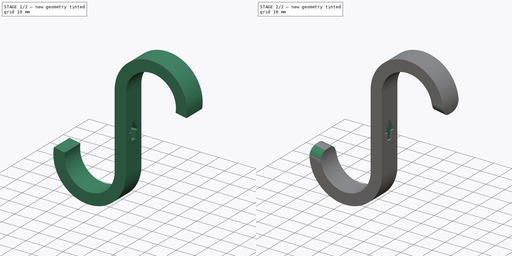
[diagram: build sequence overview — one tinted view per stage of 2, left to right]
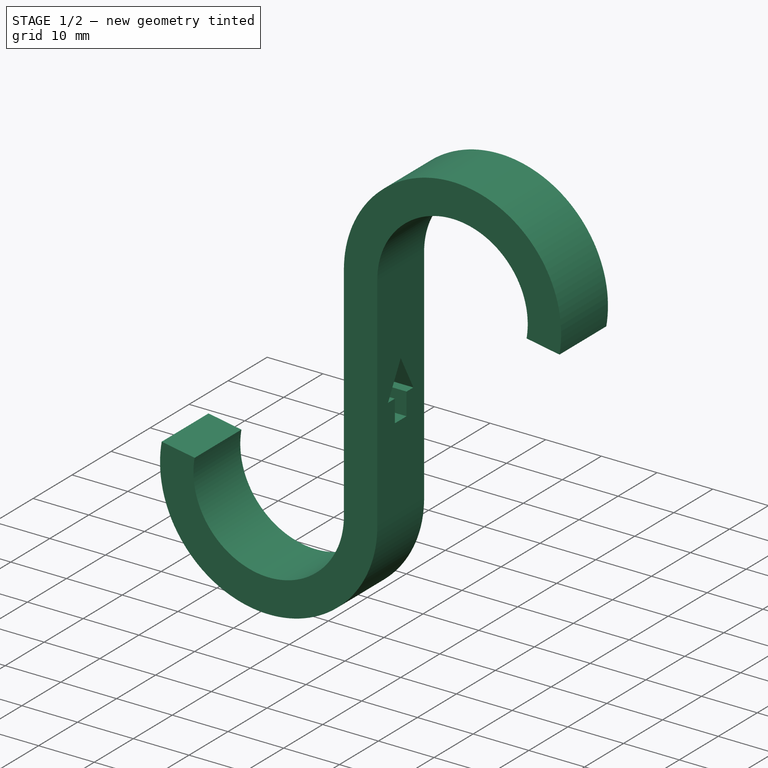
[diagram: stage 1 of 2 — iso view after this stage's code; geometry added in this stage tinted green]
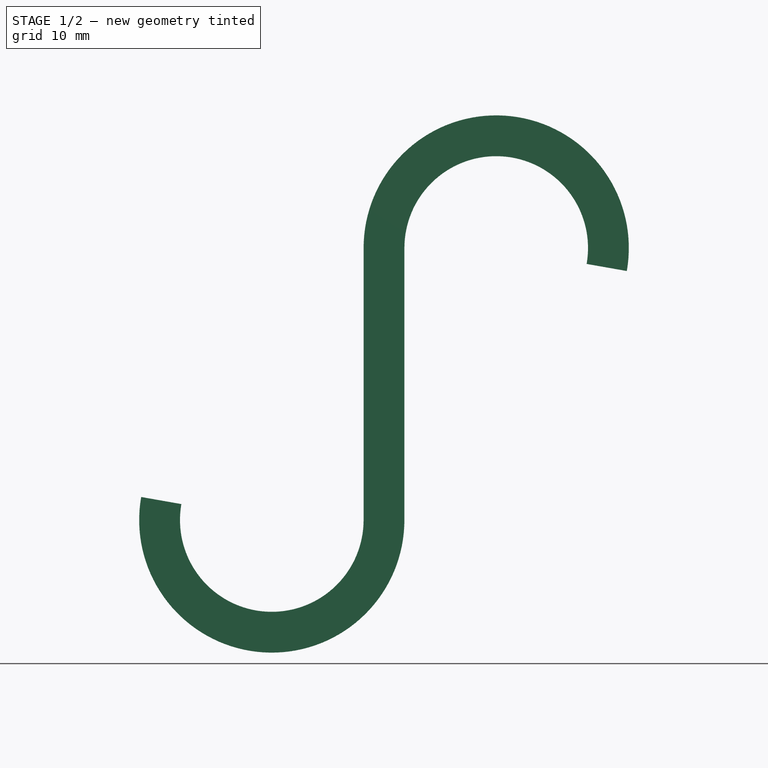
[diagram: stage 1 of 2 — front view after this stage's code; geometry added in this stage tinted green]
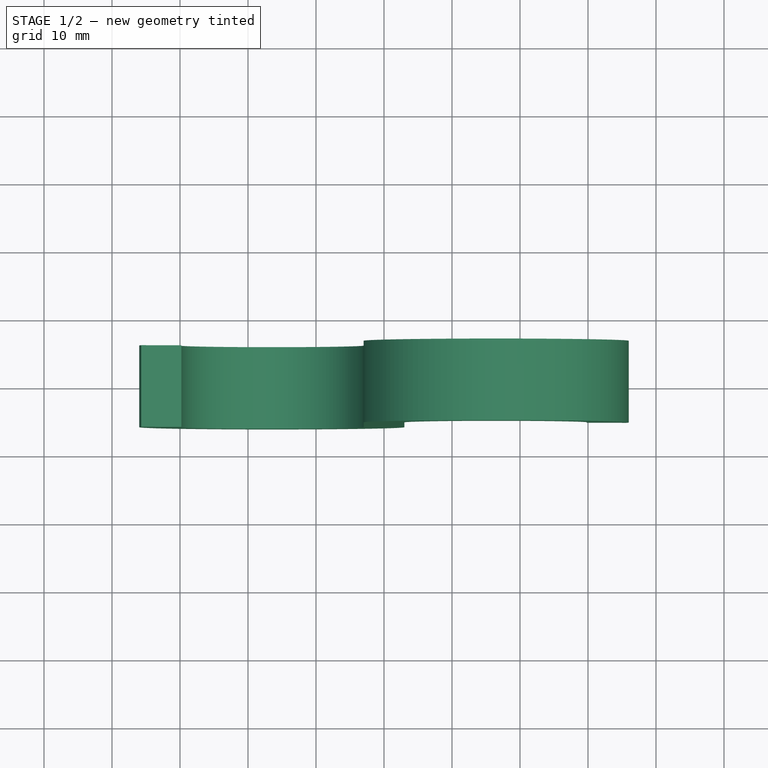
[diagram: stage 1 of 2 — top view after this stage's code; geometry added in this stage tinted green]
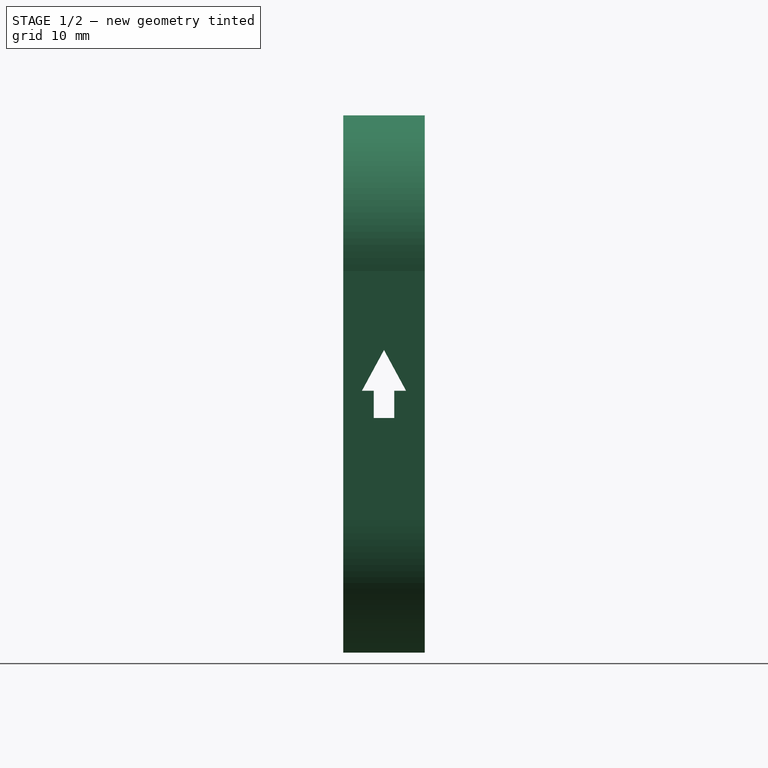
[diagram: stage 1 of 2 — right view after this stage's code; geometry added in this stage tinted green]
FCSTD DOCUMENT  (FreeCAD 0.19R22846 (Git))
Label: handtuchtrockner_haken
License: All rights reserved
LicenseURL: http://en.wikipedia.org/wiki/All_rights_reserved
objects: Sketcher::SketchObject×3, PartDesign::AdditivePipe×1, PartDesign::Pocket×1, PartDesign::Fillet×1, PartDesign::Pad×1, PartDesign::Body×1
note: 12 computed .brp shape members not serialized (recipe doc carries the construction recipe); baked Part::Feature solids carry a one-line shape summary decoded from their .brp

FEATURE [Sketcher::SketchObject] Sketch  label="sk_pfad"
  MapMode = 5
  Placement = pos=(0,0,0) rot=(1,0,0;1.5708rad)
  Support = -> [XZ_Plane]
  sketch-geometry (3):
    g0: LineSegment StartX=0 StartY=-20 StartZ=0 EndX=0 EndY=20 EndZ=0
    g1: ArcOfCircle CenterX=16.5 CenterY=20 CenterZ=0 NormalX=0 NormalY=0 NormalZ=1 AngleXU=0 Radius=16.5 StartAngle=6.10865 EndAngle=9.42478
    g2: ArcOfCircle CenterX=-16.5 CenterY=-20 CenterZ=0 NormalX=0 NormalY=0 NormalZ=1 AngleXU=0 Radius=16.5 StartAngle=2.96706 EndAngle=6.28319
  constraints (9):
    c: PointOnObject(g0,g-2)
    c: Symmetric(g0,g0,g-1)
    c: Tangent(g0,g1) = 1.5708
    c: Tangent(g0,g2) = -1.5708
    c: Angle(g1) = 3.31613
    c: Equal(g2,g1)
    c: Angle(g2) = 3.31613
    c: DistanceY(g0,g0) = 40  'rippenabstand'
    c: Diameter(g1) = 33
FEATURE [Sketcher::SketchObject] Sketch002  label="sk_pfeil"
  MapMode = 5
  Placement = pos=(0,0,0) rot=(0.57735,0.57735,0.57735;2.0944rad)
  Support = -> [YZ_Plane]
  sketch-geometry (11):
    g0: LineSegment StartX=3.25 StartY=-1 StartZ=0 EndX=0 EndY=5 EndZ=0
    g1: LineSegment StartX=0 StartY=5 StartZ=0 EndX=-3.25 EndY=-1 EndZ=0
    g2: LineSegment StartX=1.5 StartY=-1 StartZ=0 EndX=1.5 EndY=-5 EndZ=0
    g3: LineSegment StartX=1.5 StartY=-5 StartZ=0 EndX=-1.5 EndY=-5 EndZ=0
    g4: LineSegment StartX=-1.5 StartY=-5 StartZ=0 EndX=-1.5 EndY=-1 EndZ=0
    g5: LineSegment StartX=-3.25 StartY=-1 StartZ=0 EndX=-1.5 EndY=-1 EndZ=0
    g6: LineSegment StartX=1.5 StartY=-1 StartZ=0 EndX=3.25 EndY=-1 EndZ=0
    g7: LineSegment [constr] StartX=-3.25 StartY=-1 StartZ=0 EndX=0 EndY=1.11979 EndZ=0
    g8: LineSegment [constr] StartX=0 StartY=1.11979 StartZ=0 EndX=3.25 EndY=-1 EndZ=0
    g9: LineSegment [constr] StartX=0 StartY=1.11979 StartZ=0 EndX=0 EndY=5 EndZ=0
    g10: GeomPoint X=0 Y=-5 Z=0
  constraints (28):
    c: PointOnObject(g0,g-2)
    c: Coincident(g0,g1)
    c: Equal(g1,g0)
    c: DistanceX(g1,g0) = 6.5
    c: Coincident(g2,g3)
    c: Coincident(g3,g4)
    c: Vertical(g2)
    c: Vertical(g4)
    c: Symmetric(g2,g3,g-2)
    c: DistanceY(g2,g2) = 4
    c: Coincident(g5,g1)
    c: Coincident(g5,g4)
    c: Horizontal(g5)
    c: Coincident(g6,g2)
    c: Coincident(g6,g0)
    c: Horizontal(g6)
    c: DistanceX(g3,g3) = 3
    c: DistanceY(g2,g0) = 10
    c: Coincident(g7,g1)
    c: PointOnObject(g7,g-2)
    c: Coincident(g8,g7)
    c: Coincident(g8,g0)
    c: Coincident(g9,g7)
    c: Coincident(g9,g0)
    c: Equal(g7,g9)
    c: Equal(g9,g8)
    c: PointOnObject(g10,g3)
    c: Symmetric(g0,g10,g-1)
FEATURE [Sketcher::SketchObject] Sketch003  label="sk_profil"
  MapMode = 5
  Support = -> [XY_Plane]
  sketch-geometry (4):
    g0: LineSegment StartX=-3 StartY=6 StartZ=0 EndX=3 EndY=6 EndZ=0
    g1: LineSegment StartX=3 StartY=6 StartZ=0 EndX=3 EndY=-6 EndZ=0
    g2: LineSegment StartX=3 StartY=-6 StartZ=0 EndX=-3 EndY=-6 EndZ=0
    g3: LineSegment StartX=-3 StartY=-6 StartZ=0 EndX=-3 EndY=6 EndZ=0
  constraints (11):
    c: Coincident(g0,g1)
    c: Coincident(g1,g2)
    c: Coincident(g2,g3)
    c: Coincident(g3,g0)
    c: Horizontal(g0)
    c: Horizontal(g2)
    c: Vertical(g1)
    c: Vertical(g3)
    c: DistanceX(g2,g2) = 6
    c: DistanceY(g1,g1) = 12
    c: Symmetric(g0,g1,g-1)
FEATURE [PartDesign::AdditivePipe] AdditivePipe  label="haken"
  AuxilleryCurvelinear = true
  AuxillerySpineTangent = false
  Binormal = (0,0,0)
  Mode = 0
  Profile = -> Sketch003
  Refine = true
  Spine = -> Sketch
  SpineTangent = false
  Transformation = 0
  Transition = 0
FEATURE [PartDesign::Pocket] Pocket  label="pfeil"
  BaseFeature = -> AdditivePipe
  Length = 5
  Length2 = 100
  Midplane = true
  Profile = -> Sketch002
  Refine = true
  Type = 1
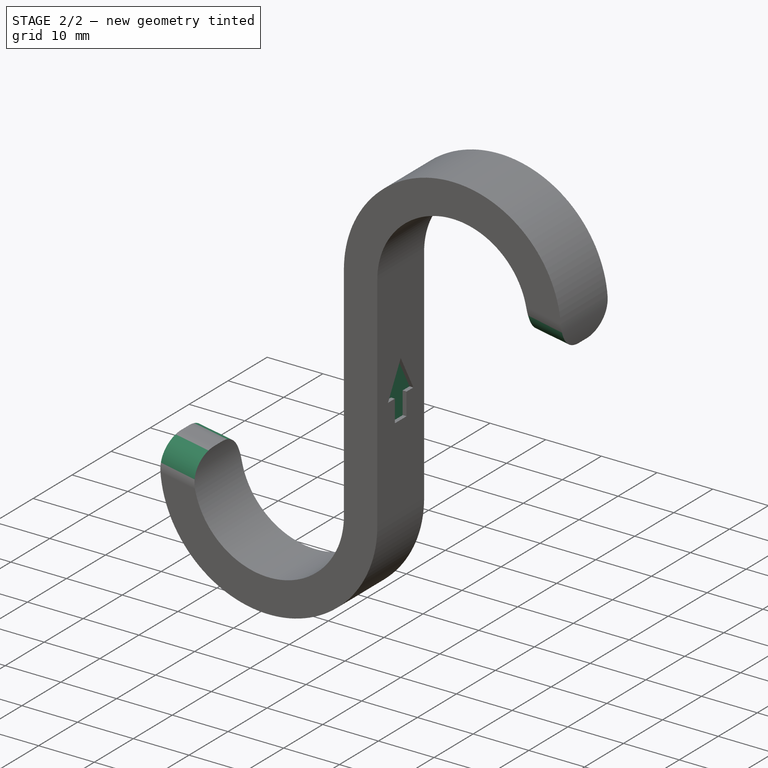
[diagram: stage 2 of 2 — iso view after this stage's code; geometry added in this stage tinted green]
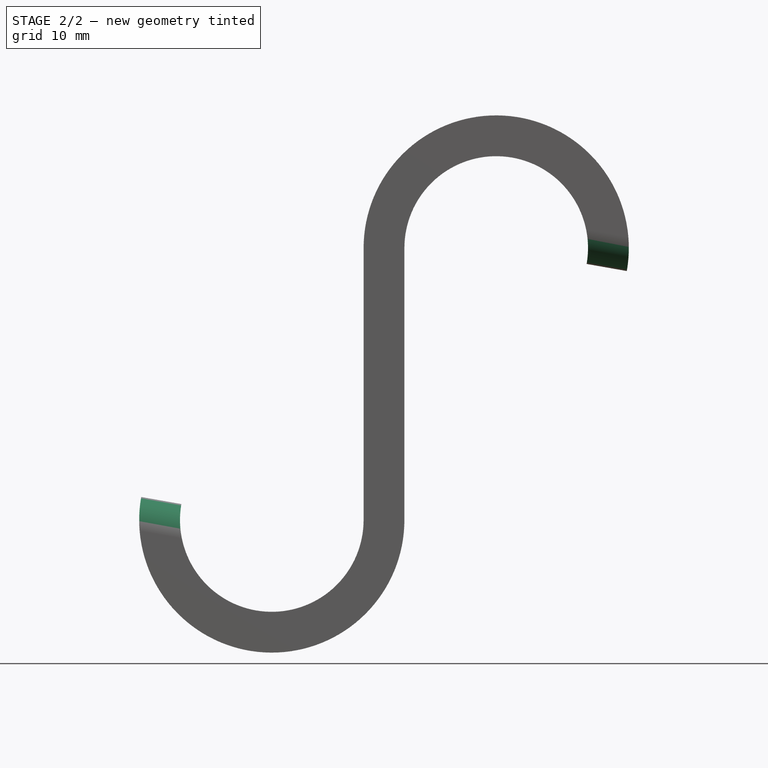
[diagram: stage 2 of 2 — front view after this stage's code; geometry added in this stage tinted green]
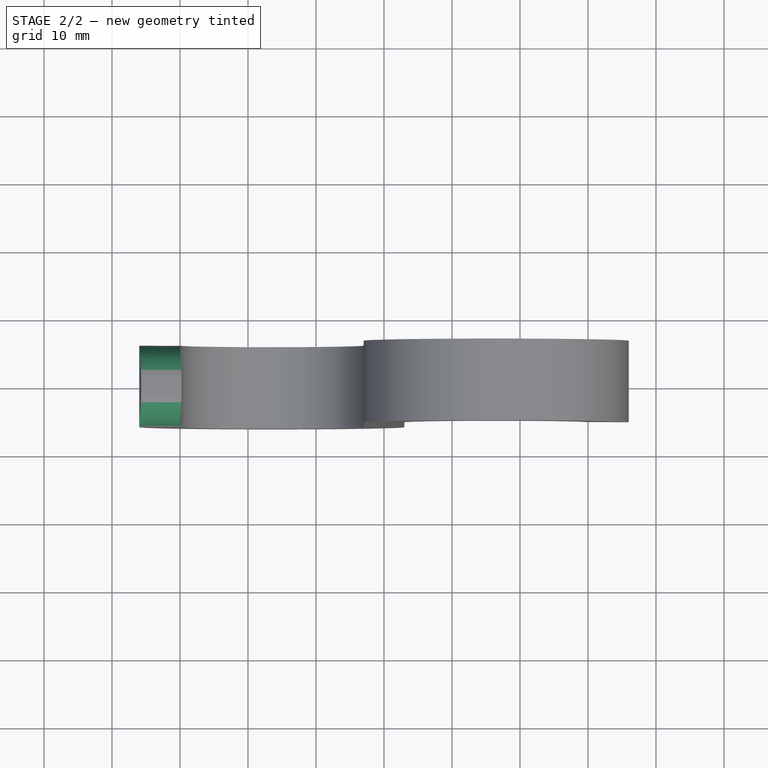
[diagram: stage 2 of 2 — top view after this stage's code; geometry added in this stage tinted green]
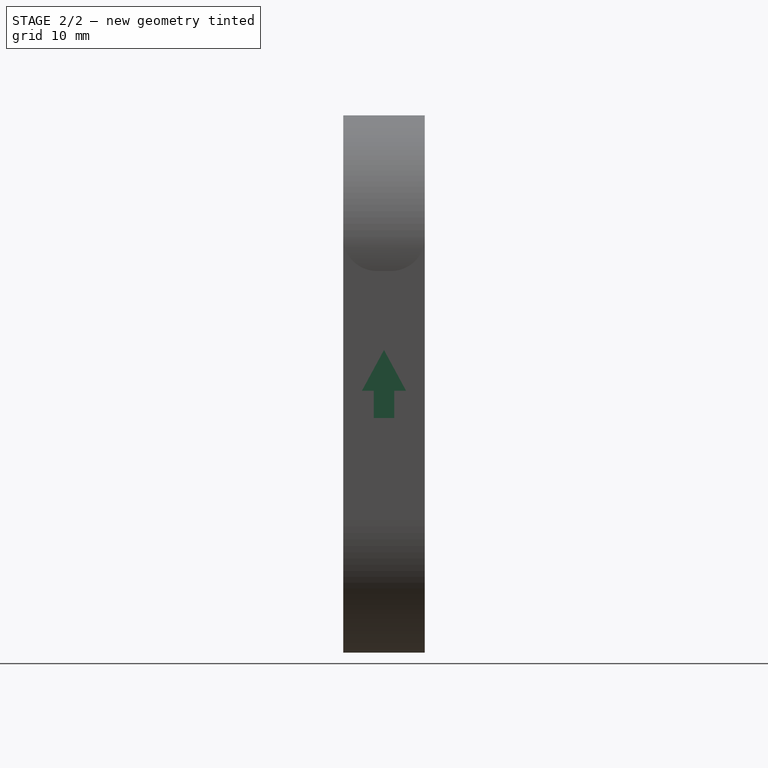
[diagram: stage 2 of 2 — right view after this stage's code; geometry added in this stage tinted green]
FEATURE [PartDesign::Fillet] Fillet  label="verrundung"
  Base = -> Pocket [Edge44,Edge45,Edge3,Edge1]
  BaseFeature = -> Pocket
  Radius = 5
  Refine = true
  SupportTransform = false
FEATURE [PartDesign::Pad] Pad  label="fuellung_pfeil"
  BaseFeature = -> Fillet
  Direction = (1,1,1)
  Length = 4.6
  Length2 = 100
  Midplane = true
  Profile = -> Sketch002
  Refine = true
  Type = 0
FEATURE [PartDesign::Body] Body
  Group = -> [Sketch,Sketch002,Sketch003,AdditivePipe,Pocket,Fillet,Pad]
  Origin = -> Origin
  Tip = -> Pad
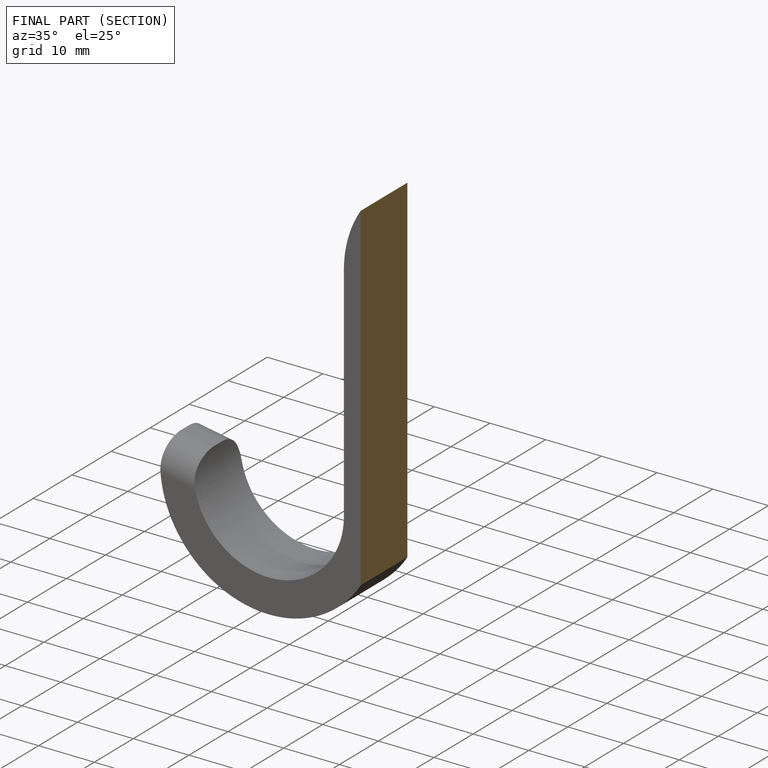
[diagram: finished part — half-section view (interior)]
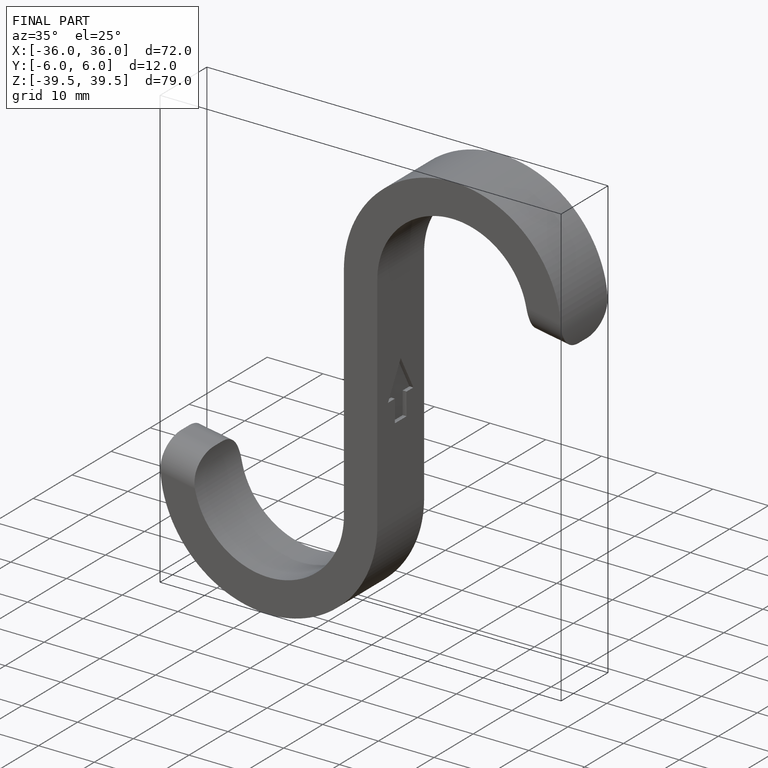
[diagram: finished part — iso view with bounding-box wireframe]
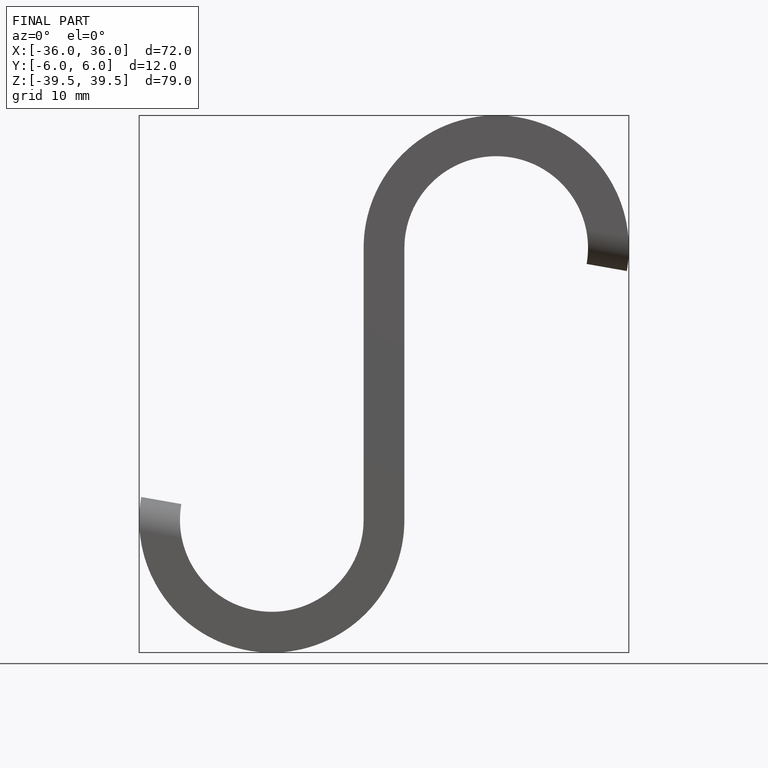
[diagram: finished part — front view with bounding-box wireframe]
